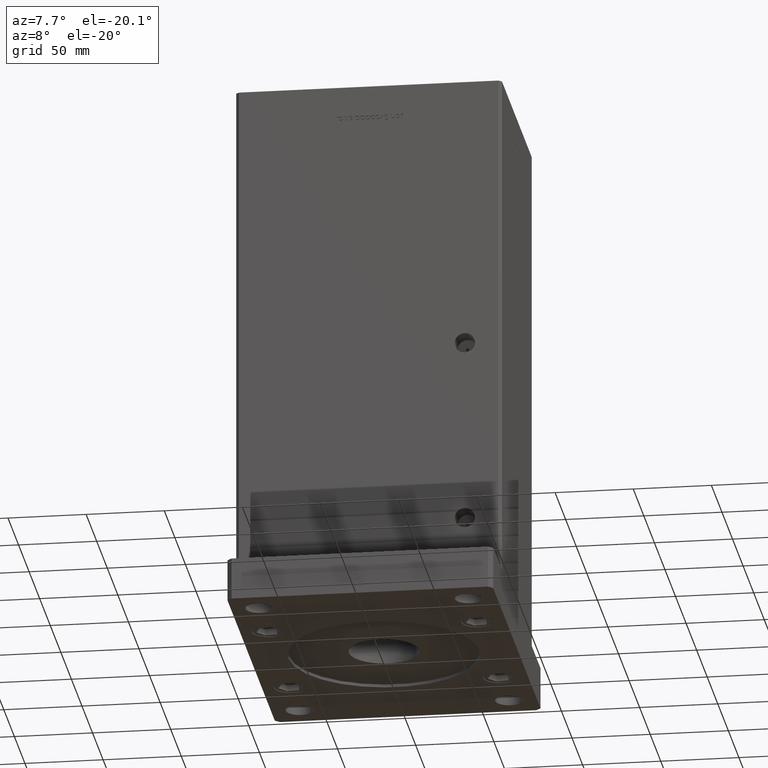
[diagram: clean part render]
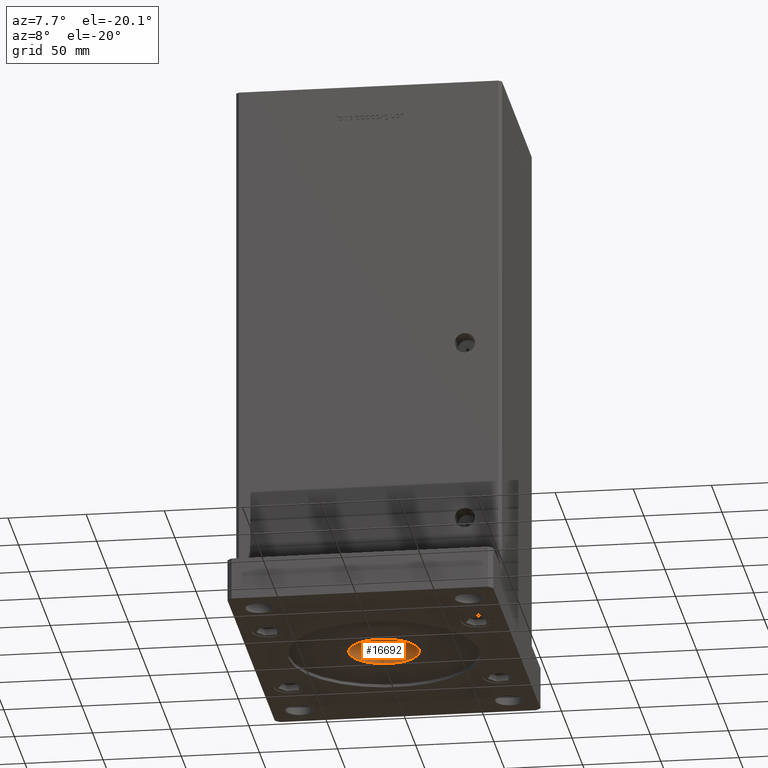
[diagram: same view with one face highlighted and labeled with its STEP entity id]
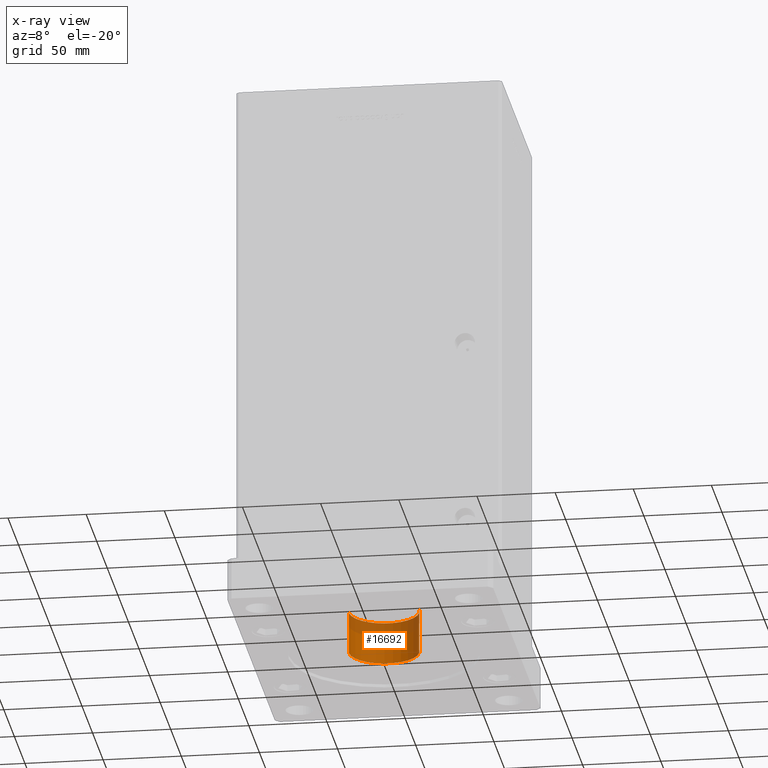
[diagram: x-ray of the same camera — body ghosted, the highlighted face saturated]
A machine part, auxiliary view. The second image highlights one B-rep face of the part: STEP entity #16692.
The next image is the same camera in x-ray: the body ghosted, the highlighted face saturated — about 34% of this face is hidden behind the body in this view.
In plain terms, the highlighted cylindrical surface (edge-blend (fillet) strip) has radius 22.5 mm, axis along (0, 0, 1).
Its self-contained STEP definition (entity closure, byte-faithful):
#2284 = CIRCLE ( 'NONE', #4993, 22.50000000000000355 ) ;
#3608 = DIRECTION ( 'NONE',  ( -0.000000000000000000, -0.000000000000000000, 1.000000000000000000 ) ) ;
#4993 = AXIS2_PLACEMENT_3D ( 'NONE', #26380, #44329, #17272 ) ;
#7759 = DIRECTION ( 'NONE',  ( -0.000000000000000000, -0.000000000000000000, 1.000000000000000000 ) ) ;
#9615 = CARTESIAN_POINT ( 'NONE',  ( 22.50000000000000355, 0.000000000000000000, 2.000000000000000000 ) ) ;
#9853 = LINE ( 'NONE', #24614, #52863 ) ;
#12777 = EDGE_CURVE ( 'NONE', #23381, #20937, #42960, .T. ) ;
#15224 = VERTEX_POINT ( 'NONE', #53031 ) ;
#16692 = ADVANCED_FACE ( 'NONE', ( #20177 ), #37848, .F. ) ;
#17272 = DIRECTION ( 'NONE',  ( 1.000000000000000000, 0.000000000000000000, 0.000000000000000000 ) ) ;
#17296 = CARTESIAN_POINT ( 'NONE',  ( 0.000000000000000000, 0.000000000000000000, 0.000000000000000000 ) ) ;
#17455 = VERTEX_POINT ( 'NONE', #36508 ) ;
#19416 = DIRECTION ( 'NONE',  ( -1.000000000000000000, 0.000000000000000000, 0.000000000000000000 ) ) ;
#19511 = EDGE_LOOP ( 'NONE', ( #26684, #37407, #28155, #29363 ) ) ;
#20177 = FACE_OUTER_BOUND ( 'NONE', #19511, .T. ) ;
#20937 = VERTEX_POINT ( 'NONE', #21234 ) ;
#21234 = CARTESIAN_POINT ( 'NONE',  ( -22.50000000000000355, 2.755455298081545172E-15, 2.000000000000000000 ) ) ;
#21268 = VECTOR ( 'NONE', #51968, 1000.000000000000000 ) ;
#23381 = VERTEX_POINT ( 'NONE', #9615 ) ;
#24614 = CARTESIAN_POINT ( 'NONE',  ( -22.50000000000000355, 2.755455298081545172E-15, 0.000000000000000000 ) ) ;
#25178 = LINE ( 'NONE', #38294, #21268 ) ;
#26380 = CARTESIAN_POINT ( 'NONE',  ( 0.000000000000000000, 0.000000000000000000, 28.99999999999999645 ) ) ;
#26684 = ORIENTED_EDGE ( 'NONE', *, *, #39788, .F. ) ;
#28155 = ORIENTED_EDGE ( 'NONE', *, *, #44896, .T. ) ;
#29363 = ORIENTED_EDGE ( 'NONE', *, *, #52409, .T. ) ;
#30410 = DIRECTION ( 'NONE',  ( 1.000000000000000000, 0.000000000000000000, 0.000000000000000000 ) ) ;
#31108 = AXIS2_PLACEMENT_3D ( 'NONE', #49076, #40230, #19416 ) ;
#35780 = AXIS2_PLACEMENT_3D ( 'NONE', #17296, #3608, #30410 ) ;
#36508 = CARTESIAN_POINT ( 'NONE',  ( 22.50000000000000355, 0.000000000000000000, 28.99999999999999645 ) ) ;
#37407 = ORIENTED_EDGE ( 'NONE', *, *, #12777, .F. ) ;
#37848 = CYLINDRICAL_SURFACE ( 'NONE', #35780, 22.50000000000000355 ) ;
#38294 = CARTESIAN_POINT ( 'NONE',  ( 22.50000000000000355, 0.000000000000000000, 0.000000000000000000 ) ) ;
#39788 = EDGE_CURVE ( 'NONE', #20937, #15224, #9853, .T. ) ;
#40230 = DIRECTION ( 'NONE',  ( -0.000000000000000000, -0.000000000000000000, 1.000000000000000000 ) ) ;
#42960 = CIRCLE ( 'NONE', #31108, 22.50000000000000355 ) ;
#44329 = DIRECTION ( 'NONE',  ( 0.000000000000000000, 0.000000000000000000, 1.000000000000000000 ) ) ;
#44896 = EDGE_CURVE ( 'NONE', #23381, #17455, #25178, .T. ) ;
#49076 = CARTESIAN_POINT ( 'NONE',  ( 0.000000000000000000, 0.000000000000000000, 2.000000000000000000 ) ) ;
#51968 = DIRECTION ( 'NONE',  ( -0.000000000000000000, -0.000000000000000000, 1.000000000000000000 ) ) ;
#52409 = EDGE_CURVE ( 'NONE', #17455, #15224, #2284, .T. ) ;
#52863 = VECTOR ( 'NONE', #7759, 1000.000000000000000 ) ;
#53031 = CARTESIAN_POINT ( 'NONE',  ( -22.50000000000000355, 2.755455298081545172E-15, 28.99999999999999645 ) ) ;